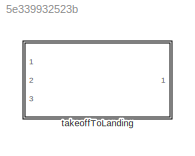
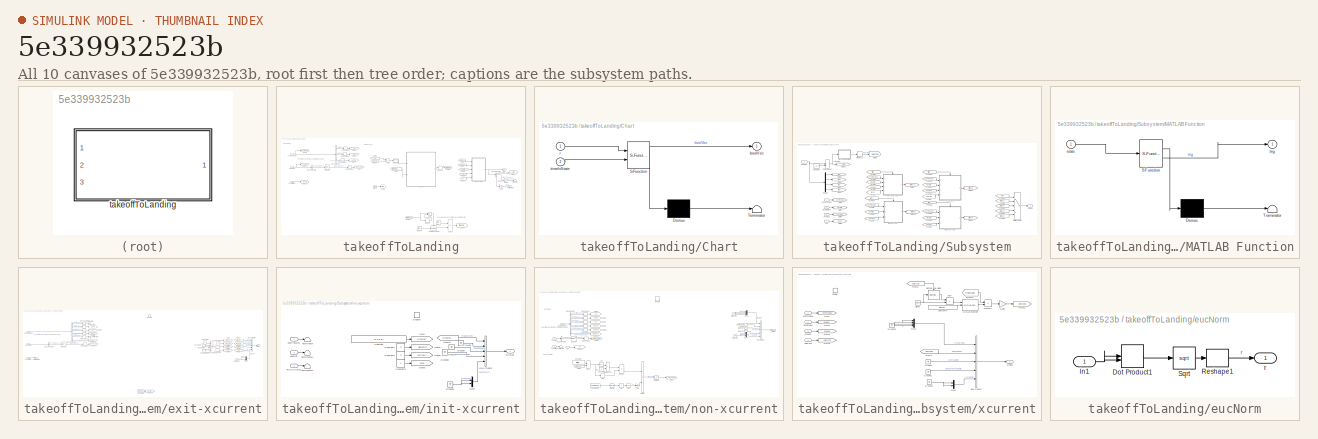
[diagram: thumbnail index - all 10 canvases of the model, root first then tree order]
MODEL slx_5e339932523b
KIND library
CONFIG AbsTol = auto
CONFIG EnableMultiTasking = off
CONFIG FixedStep = auto
CONFIG MaxStep = auto
CONFIG MinStep = auto
CONFIG RelTol = 1e-3
CONFIG SampleTimeConstraint = Unconstrained
CONFIG SolverName = VariableStepAuto
CONFIG StartTime = 0.0
CONFIG StopTime = 10.0
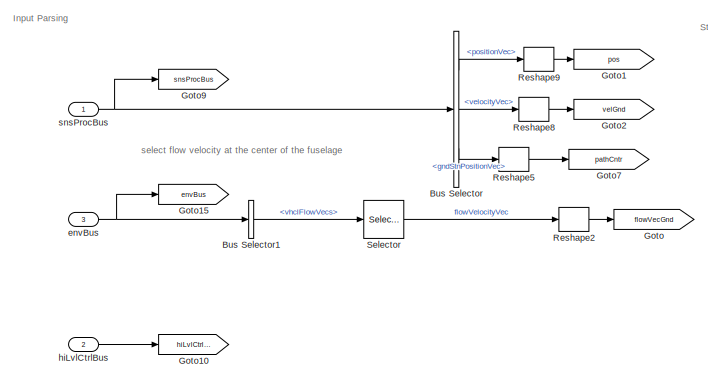
[diagram: takeoffToLanding - part 1/2, top left region]
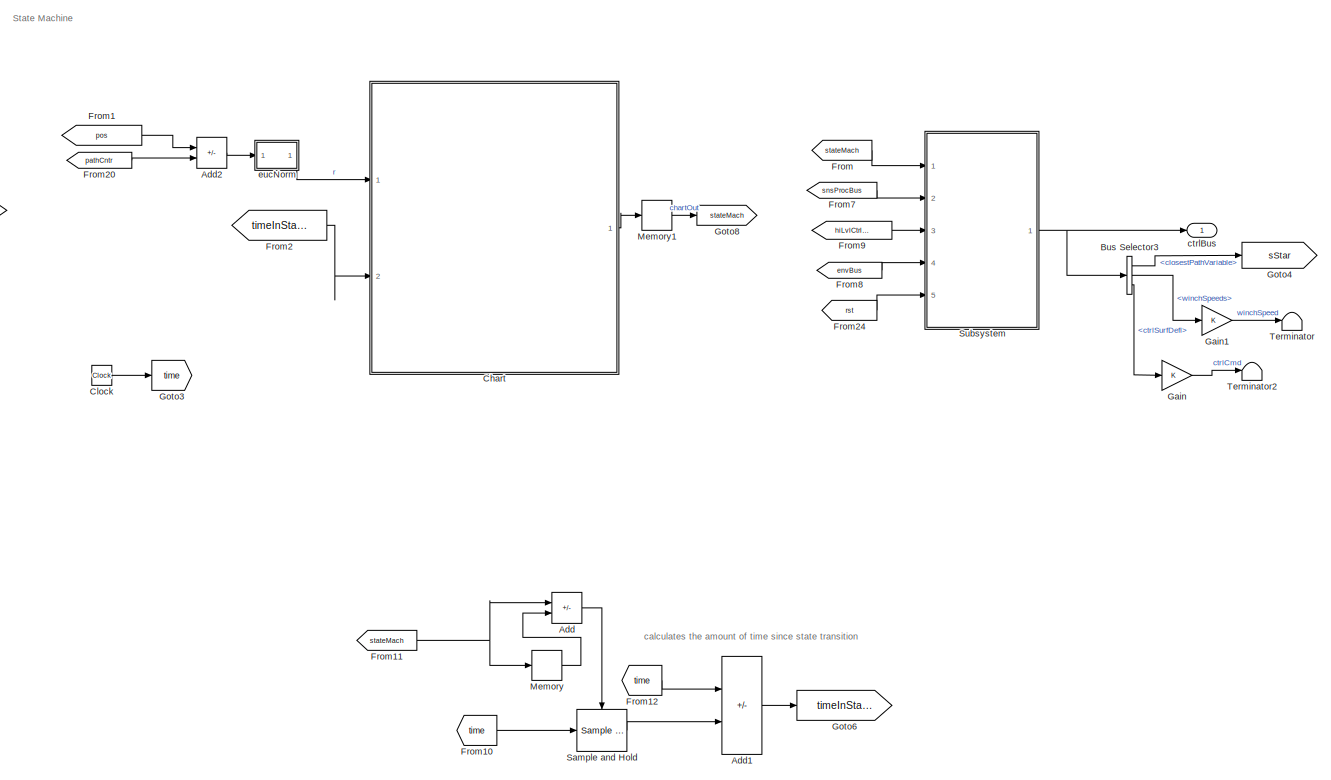
[diagram: takeoffToLanding - part 2/2, right side, full height]
BLOCK [SubSystem] takeoffToLanding
  AncestorBlock = takeoffToLanding_cl/takeoffToLanding
  InitFcn = initializeBussesFromBlock(gcb)
  LoadFcn = initializeBussesFromBlock(gcb)
  MinAlgLoopOccurrences = on
  Ports = [3, 1]
  RequestExecContextInheritance = off
  StartFcn = initializeBussesFromBlock(gcb)
  VariantControl = strcmpi(FLIGHTCONTROLLER,'takeoffToLanding')
BLOCK [Sum] takeoffToLanding/Add
  IconShape = rectangular
  Inputs = +-
  Ports = [2, 1]
BLOCK [Sum] takeoffToLanding/Add1
  IconShape = rectangular
  Inputs = +-
  Ports = [2, 1]
BLOCK [Sum] takeoffToLanding/Add2
  IconShape = rectangular
  Inputs = +-
  Ports = [2, 1]
BLOCK [BusSelector] takeoffToLanding/Bus Selector
  OutputSignals = positionVec,velocityVec,gndStnPositionVec
  Ports = [1, 3]
BLOCK [BusSelector] takeoffToLanding/Bus Selector1
  OutputSignals = vhclFlowVecs
  Ports = [1, 1]
BLOCK [BusSelector] takeoffToLanding/Bus Selector3
  OutputSignals = closestPathVariable,winchSpeeds,ctrlSurfDefl
  Ports = [1, 3]
BLOCK [SubSystem] takeoffToLanding/Chart
  ErrorFcn = Stateflow.Translate.translate
  PermitHierarchicalResolution = ExplicitOnly
  Ports = [2, 1]
  RequestExecContextInheritance = off
  SFBlockType = Chart
  TreatAsAtomicUnit = on
BLOCK [Demux] takeoffToLanding/Chart/ Demux 
  Outputs = 1
  Ports = [1, 1]
BLOCK [S-Function] takeoffToLanding/Chart/ SFunction 
  EnableBusSupport = off
  FunctionName = sf_sfun
  Parameters = maxR,minTL
  PortCounts = [2 2]
  Ports = [2, 2]
  SFcnIsStateOwnerBlock = off
  SFunctionDeploymentMode = off
  Tag = Stateflow S-Function 5
BLOCK [Terminator] takeoffToLanding/Chart/ Terminator 
BLOCK [Outport] takeoffToLanding/Chart/boolVec
  VectorParamsAs1DForOutWhenUnconnected = off
BLOCK [Inport] takeoffToLanding/Chart/r
BLOCK [Inport] takeoffToLanding/Chart/timeInState
  Port = 2
BLOCK [Clock] takeoffToLanding/Clock
BLOCK [From] takeoffToLanding/From
  GotoTag = stateMach
BLOCK [From] takeoffToLanding/From1
  GotoTag = pos
BLOCK [From] takeoffToLanding/From10
  GotoTag = time
BLOCK [From] takeoffToLanding/From11
  GotoTag = stateMach
BLOCK [From] takeoffToLanding/From12
  GotoTag = time
BLOCK [From] takeoffToLanding/From2
  GotoTag = timeInState
BLOCK [From] takeoffToLanding/From20
  GotoTag = pathCntr
BLOCK [From] takeoffToLanding/From24
  GotoTag = rst
BLOCK [From] takeoffToLanding/From7
  GotoTag = snsProcBus
BLOCK [From] takeoffToLanding/From8
  GotoTag = envBus
BLOCK [From] takeoffToLanding/From9
  GotoTag = hiLvlCtrlBus
BLOCK [Gain] takeoffToLanding/Gain
BLOCK [Gain] takeoffToLanding/Gain1
BLOCK [Goto] takeoffToLanding/Goto
  Commented = on
  GotoTag = flowVecGnd
BLOCK [Goto] takeoffToLanding/Goto1
  GotoTag = pos
BLOCK [Goto] takeoffToLanding/Goto10
  GotoTag = hiLvlCtrlBus
BLOCK [Goto] takeoffToLanding/Goto15
  GotoTag = envBus
BLOCK [Goto] takeoffToLanding/Goto2
  Commented = on
  GotoTag = velGnd
BLOCK [Goto] takeoffToLanding/Goto3
  GotoTag = time
BLOCK [Goto] takeoffToLanding/Goto4
  GotoTag = sStar
BLOCK [Goto] takeoffToLanding/Goto6
  GotoTag = timeInState
BLOCK [Goto] takeoffToLanding/Goto7
  GotoTag = pathCntr
BLOCK [Goto] takeoffToLanding/Goto8
  GotoTag = stateMach
BLOCK [Goto] takeoffToLanding/Goto9
  GotoTag = snsProcBus
BLOCK [Memory] takeoffToLanding/Memory
BLOCK [Memory] takeoffToLanding/Memory1
  InitialCondition = [1 0 0 0]
BLOCK [Reshape] takeoffToLanding/Reshape2
  OutputDimensionality = Column vector (2-D)
  Ports = [1, 1]
BLOCK [Reshape] takeoffToLanding/Reshape5
  OutputDimensionality = Column vector (2-D)
  Ports = [1, 1]
BLOCK [Reshape] takeoffToLanding/Reshape8
  OutputDimensionality = Column vector (2-D)
  Ports = [1, 1]
BLOCK [Reshape] takeoffToLanding/Reshape9
  OutputDimensionality = Column vector (2-D)
  Ports = [1, 1]
BLOCK [Reference] takeoffToLanding/Sample and Hold  REF=dspsigops/Sample
and Hold
  Ports = [1, 1, 0, 1]
  SourceBlock = dspsigops/Sample\nand Hold
  SourceProductBaseCode = DS
  SourceType = Sample and Hold
BLOCK [Selector] takeoffToLanding/Selector
  IndexOptions = Select all,Index vector (dialog)
  Indices = [1 3],5
  InputPortWidth = 3
  NumberOfDimensions = 2
  OutputSizes = 1,1
  Ports = [1, 1]
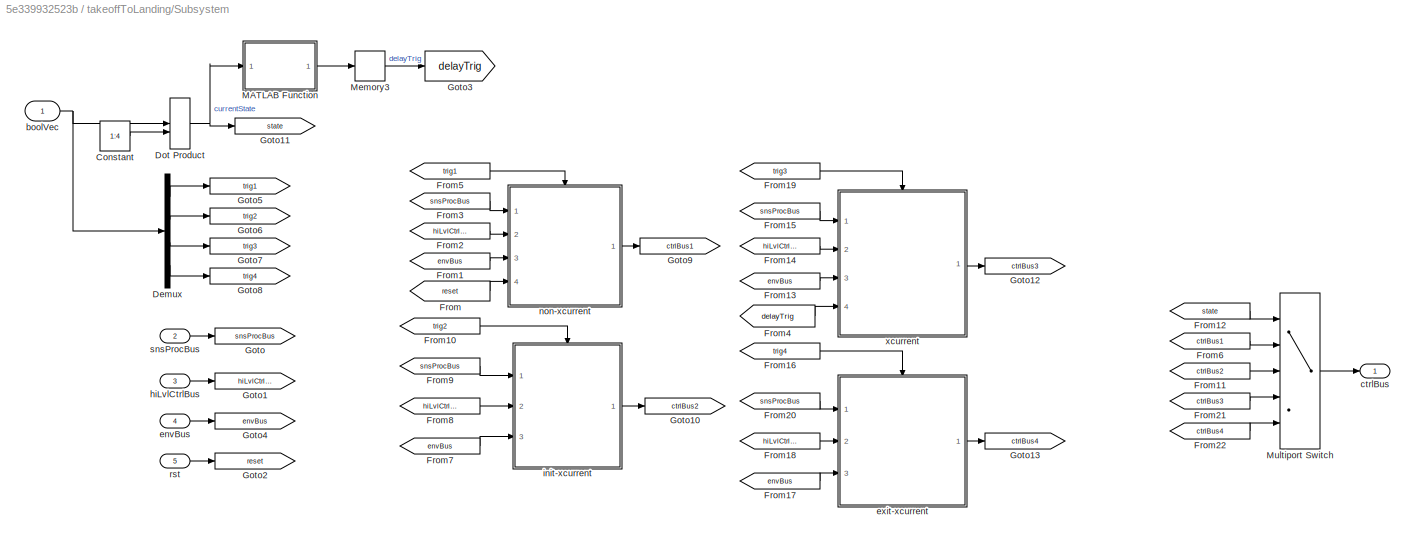
BLOCK [SubSystem] takeoffToLanding/Subsystem
  Ports = [5, 1]
  RequestExecContextInheritance = off
BLOCK [Constant] takeoffToLanding/Subsystem/Constant
  Value = 1:4
BLOCK [Demux] takeoffToLanding/Subsystem/Demux
  Ports = [1, 4]
BLOCK [DotProduct] takeoffToLanding/Subsystem/Dot Product
  OutDataTypeStr = Inherit: Inherit via internal rule
BLOCK [From] takeoffToLanding/Subsystem/From
  GotoTag = reset
BLOCK [From] takeoffToLanding/Subsystem/From1
  GotoTag = envBus
BLOCK [From] takeoffToLanding/Subsystem/From10
  GotoTag = trig2
BLOCK [From] takeoffToLanding/Subsystem/From11
  GotoTag = ctrlBus2
BLOCK [From] takeoffToLanding/Subsystem/From12
  GotoTag = state
BLOCK [From] takeoffToLanding/Subsystem/From13
  GotoTag = envBus
BLOCK [From] takeoffToLanding/Subsystem/From14
  GotoTag = hiLvlCtrlBus
BLOCK [From] takeoffToLanding/Subsystem/From15
  GotoTag = snsProcBus
BLOCK [From] takeoffToLanding/Subsystem/From16
  GotoTag = trig4
BLOCK [From] takeoffToLanding/Subsystem/From17
  GotoTag = envBus
BLOCK [From] takeoffToLanding/Subsystem/From18
  GotoTag = hiLvlCtrlBus
BLOCK [From] takeoffToLanding/Subsystem/From19
  GotoTag = trig3
BLOCK [From] takeoffToLanding/Subsystem/From2
  GotoTag = hiLvlCtrlBus
BLOCK [From] takeoffToLanding/Subsystem/From20
  GotoTag = snsProcBus
BLOCK [From] takeoffToLanding/Subsystem/From21
  GotoTag = ctrlBus3
BLOCK [From] takeoffToLanding/Subsystem/From22
  GotoTag = ctrlBus4
BLOCK [From] takeoffToLanding/Subsystem/From3
  GotoTag = snsProcBus
BLOCK [From] takeoffToLanding/Subsystem/From4
  GotoTag = delayTrig
BLOCK [From] takeoffToLanding/Subsystem/From5
  GotoTag = trig1
BLOCK [From] takeoffToLanding/Subsystem/From6
  GotoTag = ctrlBus1
BLOCK [From] takeoffToLanding/Subsystem/From7
  GotoTag = envBus
BLOCK [From] takeoffToLanding/Subsystem/From8
  GotoTag = hiLvlCtrlBus
BLOCK [From] takeoffToLanding/Subsystem/From9
  GotoTag = snsProcBus
BLOCK [Goto] takeoffToLanding/Subsystem/Goto
  GotoTag = snsProcBus
BLOCK [Goto] takeoffToLanding/Subsystem/Goto1
  GotoTag = hiLvlCtrlBus
BLOCK [Goto] takeoffToLanding/Subsystem/Goto10
  GotoTag = ctrlBus2
BLOCK [Goto] takeoffToLanding/Subsystem/Goto11
  GotoTag = state
BLOCK [Goto] takeoffToLanding/Subsystem/Goto12
  GotoTag = ctrlBus3
BLOCK [Goto] takeoffToLanding/Subsystem/Goto13
  GotoTag = ctrlBus4
BLOCK [Goto] takeoffToLanding/Subsystem/Goto2
  GotoTag = reset
BLOCK [Goto] takeoffToLanding/Subsystem/Goto3
  GotoTag = delayTrig
BLOCK [Goto] takeoffToLanding/Subsystem/Goto4
  GotoTag = envBus
BLOCK [Goto] takeoffToLanding/Subsystem/Goto5
  GotoTag = trig1
BLOCK [Goto] takeoffToLanding/Subsystem/Goto6
  GotoTag = trig2
BLOCK [Goto] takeoffToLanding/Subsystem/Goto7
  GotoTag = trig3
BLOCK [Goto] takeoffToLanding/Subsystem/Goto8
  GotoTag = trig4
BLOCK [Goto] takeoffToLanding/Subsystem/Goto9
  GotoTag = ctrlBus1
BLOCK [SubSystem] takeoffToLanding/Subsystem/MATLAB Function
  ErrorFcn = Stateflow.Translate.translate
  PermitHierarchicalResolution = ExplicitOnly
  Ports = [1, 1]
  RequestExecContextInheritance = off
  SFBlockType = MATLAB Function
  TreatAsAtomicUnit = on
BLOCK [Demux] takeoffToLanding/Subsystem/MATLAB Function/ Demux 
  Outputs = 1
  Ports = [1, 1]
BLOCK [S-Function] takeoffToLanding/Subsystem/MATLAB Function/ SFunction 
  EnableBusSupport = off
  FunctionName = sf_sfun
  PortCounts = [1 2]
  Ports = [1, 2]
  SFcnIsStateOwnerBlock = off
  SFunctionDeploymentMode = off
  Tag = Stateflow S-Function 2
BLOCK [Terminator] takeoffToLanding/Subsystem/MATLAB Function/ Terminator 
BLOCK [Inport] takeoffToLanding/Subsystem/MATLAB Function/state
BLOCK [Outport] takeoffToLanding/Subsystem/MATLAB Function/trig
BLOCK [Memory] takeoffToLanding/Subsystem/Memory3
BLOCK [MultiPortSwitch] takeoffToLanding/Subsystem/Multiport Switch
  DataPortIndices = {1,2,3,4,5,6}
  DiagnosticForDefault = Warning
  InputSameDT = off
  Inputs = 4
  Ports = [5, 1]
  SaturateOnIntegerOverflow = off
BLOCK [Inport] takeoffToLanding/Subsystem/boolVec
BLOCK [Outport] takeoffToLanding/Subsystem/ctrlBus
BLOCK [Inport] takeoffToLanding/Subsystem/envBus
  Port = 4
BLOCK [SubSystem] takeoffToLanding/Subsystem/exit-xcurrent
  Ports = [3, 1, 1]
  RequestExecContextInheritance = off
  TreatAsAtomicUnit = on
BLOCK [BusCreator] takeoffToLanding/Subsystem/exit-xcurrent/Bus Creator
  DisplayOption = bar
  InheritFromInputs = off
  Inputs = 5
  OutDataTypeStr = Bus: fltCtrlBus
  Ports = [5, 1]
BLOCK [BusSelector] takeoffToLanding/Subsystem/exit-xcurrent/Bus Selector
  OutputSignals = positionVec,velocityVec,eulerAngles,angularVel,gndStnPositionVec,avgTetherLength
  Ports = [1, 6]
BLOCK [BusSelector] takeoffToLanding/Subsystem/exit-xcurrent/Bus Selector1
  OutputSignals = vhclFlowVecs
  Ports = [1, 1]
BLOCK [Constant] takeoffToLanding/Subsystem/exit-xcurrent/Constant1
  Value = 0
BLOCK [Constant] takeoffToLanding/Subsystem/exit-xcurrent/Constant2
  Value = 0
BLOCK [Constant] takeoffToLanding/Subsystem/exit-xcurrent/Constant3
  Value = 0
BLOCK [Constant] takeoffToLanding/Subsystem/exit-xcurrent/Constant4
  Commented = on
  Value = zeros(3,1)
BLOCK [Constant] takeoffToLanding/Subsystem/exit-xcurrent/Constant5
  Value = 0
BLOCK [Constant] takeoffToLanding/Subsystem/exit-xcurrent/Constant6
  Value = 0
BLOCK [Constant] takeoffToLanding/Subsystem/exit-xcurrent/Constant7
  Value = 0
BLOCK [Constant] takeoffToLanding/Subsystem/exit-xcurrent/Constant8
  Value = 0
BLOCK [EnablePort] takeoffToLanding/Subsystem/exit-xcurrent/Enable
  Ports = []
BLOCK [From] takeoffToLanding/Subsystem/exit-xcurrent/From10
  GotoTag = sStar
BLOCK [From] takeoffToLanding/Subsystem/exit-xcurrent/From17
  GotoTag = ctrlSurDefl
BLOCK [From] takeoffToLanding/Subsystem/exit-xcurrent/From8
  GotoTag = winchCmd
BLOCK [From] takeoffToLanding/Subsystem/exit-xcurrent/From9
  GotoTag = centralAngle
BLOCK [Goto] takeoffToLanding/Subsystem/exit-xcurrent/Goto
  GotoTag = ctrlSurDefl
BLOCK [Goto] takeoffToLanding/Subsystem/exit-xcurrent/Goto1
  GotoTag = winchCmd
BLOCK [Goto] takeoffToLanding/Subsystem/exit-xcurrent/Goto11
  Commented = on
  GotoTag = tetherLength
BLOCK [Goto] takeoffToLanding/Subsystem/exit-xcurrent/Goto13
  Commented = on
  GotoTag = MDesBdy
BLOCK [Goto] takeoffToLanding/Subsystem/exit-xcurrent/Goto2
  GotoTag = centralAngle
BLOCK [Goto] takeoffToLanding/Subsystem/exit-xcurrent/Goto3
  GotoTag = sStar
BLOCK [Goto] takeoffToLanding/Subsystem/exit-xcurrent/Goto4
  Commented = on
  GotoTag = flowVecGnd
BLOCK [Goto] takeoffToLanding/Subsystem/exit-xcurrent/Goto6
  Commented = on
  GotoTag = velGnd
BLOCK [Goto] takeoffToLanding/Subsystem/exit-xcurrent/Goto7
  Commented = on
  GotoTag = eul
BLOCK [Goto] takeoffToLanding/Subsystem/exit-xcurrent/Goto8
  Commented = on
  GotoTag = angVel
BLOCK [Ground] takeoffToLanding/Subsystem/exit-xcurrent/Ground1
BLOCK [Mux] takeoffToLanding/Subsystem/exit-xcurrent/Mux2
  DisplayOption = bar
  Inputs = 2
  Ports = [2, 1]
BLOCK [Reshape] takeoffToLanding/Subsystem/exit-xcurrent/Reshape1
  OutputDimensionality = Column vector (2-D)
  Ports = [1, 1]
BLOCK [Reshape] takeoffToLanding/Subsystem/exit-xcurrent/Reshape2
  OutputDimensionality = Column vector (2-D)
  Ports = [1, 1]
BLOCK [Reshape] takeoffToLanding/Subsystem/exit-xcurrent/Reshape6
  OutputDimensionality = Column vector (2-D)
  Ports = [1, 1]
BLOCK [Reshape] takeoffToLanding/Subsystem/exit-xcurrent/Reshape7
  OutputDimensionality = Column vector (2-D)
  Ports = [1, 1]
BLOCK [Reshape] takeoffToLanding/Subsystem/exit-xcurrent/Reshape8
  OutputDimensionality = Column vector (2-D)
  Ports = [1, 1]
BLOCK [Reshape] takeoffToLanding/Subsystem/exit-xcurrent/Reshape9
  OutputDimensionality = Column vector (2-D)
  Ports = [1, 1]
BLOCK [Selector] takeoffToLanding/Subsystem/exit-xcurrent/Selector
  IndexOptions = Select all,Index vector (dialog)
  Indices = [1 3],5
  InputPortWidth = 3
  NumberOfDimensions = 2
  OutputSizes = 1,1
  Ports = [1, 1]
BLOCK [Terminator] takeoffToLanding/Subsystem/exit-xcurrent/Terminator3
BLOCK [Terminator] takeoffToLanding/Subsystem/exit-xcurrent/Terminator4
BLOCK [Terminator] takeoffToLanding/Subsystem/exit-xcurrent/Terminator5
BLOCK [Concatenate] takeoffToLanding/Subsystem/exit-xcurrent/Vector Concatenate
  NumInputs = 4
  Ports = [4, 1]
BLOCK [Outport] takeoffToLanding/Subsystem/exit-xcurrent/ctrlBus
  OutDataTypeStr = Bus: fltCtrlBus
  VectorParamsAs1DForOutWhenUnconnected = off
BLOCK [Inport] takeoffToLanding/Subsystem/exit-xcurrent/envBus
  OutDataTypeStr = Bus: envBus
  Port = 3
BLOCK [Inport] takeoffToLanding/Subsystem/exit-xcurrent/hiLvlCtrlBus
  OutDataTypeStr = Bus: hiLvlCtrlBus
  Port = 2
BLOCK [Inport] takeoffToLanding/Subsystem/exit-xcurrent/snsProcBus
  OutDataTypeStr = Bus: sensorsProcessingBus
BLOCK [Inport] takeoffToLanding/Subsystem/hiLvlCtrlBus
  Port = 3
BLOCK [SubSystem] takeoffToLanding/Subsystem/init-xcurrent
  Ports = [3, 1, 1]
  RequestExecContextInheritance = off
  TreatAsAtomicUnit = on
BLOCK [BusCreator] takeoffToLanding/Subsystem/init-xcurrent/Bus Creator
  DisplayOption = bar
  InheritFromInputs = off
  Inputs = 5
  OutDataTypeStr = Bus: fltCtrlBus
  Ports = [5, 1]
BLOCK [Constant] takeoffToLanding/Subsystem/init-xcurrent/Constant
  Value = [0 0 0 0]'
BLOCK [Constant] takeoffToLanding/Subsystem/init-xcurrent/Constant1
  Value = 0
BLOCK [Constant] takeoffToLanding/Subsystem/init-xcurrent/Constant2
  Value = 0
BLOCK [Constant] takeoffToLanding/Subsystem/init-xcurrent/Constant3
  Value = 0
BLOCK [EnablePort] takeoffToLanding/Subsystem/init-xcurrent/Enable
  Ports = []
BLOCK [From] takeoffToLanding/Subsystem/init-xcurrent/From17
  GotoTag = ctrlSurDefl
BLOCK [Goto] takeoffToLanding/Subsystem/init-xcurrent/Goto
  GotoTag = ctrlSurDefl
BLOCK [Goto] takeoffToLanding/Subsystem/init-xcurrent/Goto1
  GotoTag = winchCmd
BLOCK [Goto] takeoffToLanding/Subsystem/init-xcurrent/Goto2
  GotoTag = centralAngle
BLOCK [Goto] takeoffToLanding/Subsystem/init-xcurrent/Goto3
  GotoTag = sStar
BLOCK [Ground] takeoffToLanding/Subsystem/init-xcurrent/Ground
BLOCK [Ground] takeoffToLanding/Subsystem/init-xcurrent/Ground1
BLOCK [Ground] takeoffToLanding/Subsystem/init-xcurrent/Ground2
BLOCK [Ground] takeoffToLanding/Subsystem/init-xcurrent/Ground3
BLOCK [Mux] takeoffToLanding/Subsystem/init-xcurrent/Mux2
  DisplayOption = bar
  Inputs = 2
  Ports = [2, 1]
BLOCK [Terminator] takeoffToLanding/Subsystem/init-xcurrent/Terminator
BLOCK [Terminator] takeoffToLanding/Subsystem/init-xcurrent/Terminator1
BLOCK [Terminator] takeoffToLanding/Subsystem/init-xcurrent/Terminator2
BLOCK [Outport] takeoffToLanding/Subsystem/init-xcurrent/ctrlBus
  OutDataTypeStr = Bus: fltCtrlBus
  VectorParamsAs1DForOutWhenUnconnected = off
BLOCK [Inport] takeoffToLanding/Subsystem/init-xcurrent/envBus
  OutDataTypeStr = Bus: envBus
  Port = 3
BLOCK [Inport] takeoffToLanding/Subsystem/init-xcurrent/hiLvlCtrlBus
  OutDataTypeStr = Bus: hiLvlCtrlBus
  Port = 2
BLOCK [Inport] takeoffToLanding/Subsystem/init-xcurrent/snsProcBus
  OutDataTypeStr = Bus: sensorsProcessingBus
BLOCK [SubSystem] takeoffToLanding/Subsystem/non-xcurrent
  Ports = [4, 1, 1]
  RequestExecContextInheritance = off
  TreatAsAtomicUnit = on
BLOCK [Abs] takeoffToLanding/Subsystem/non-xcurrent/Abs
  SaturateOnIntegerOverflow = off
BLOCK [Sum] takeoffToLanding/Subsystem/non-xcurrent/Add
  IconShape = rectangular
  Inputs = +
  Ports = [1, 1]
BLOCK [BusCreator] takeoffToLanding/Subsystem/non-xcurrent/Bus Creator
  DisplayOption = bar
  InheritFromInputs = off
  Inputs = 5
  OutDataTypeStr = Bus: fltCtrlBus
  Ports = [5, 1]
BLOCK [BusSelector] takeoffToLanding/Subsystem/non-xcurrent/Bus Selector
  OutputSignals = positionVec,velocityVec,eulerAngles,angularVel,gndStnPositionVec,avgTetherLength
  Ports = [1, 6]
BLOCK [BusSelector] takeoffToLanding/Subsystem/non-xcurrent/Bus Selector1
  OutputSignals = vhclFlowVecs
  Ports = [1, 1]
BLOCK [Constant] takeoffToLanding/Subsystem/non-xcurrent/Constant
  Value = fltCtrl.initTL.Value
BLOCK [Constant] takeoffToLanding/Subsystem/non-xcurrent/Constant1
  Value = .5
BLOCK [Constant] takeoffToLanding/Subsystem/non-xcurrent/Constant2
  Value = boatSpeed
BLOCK [Product] takeoffToLanding/Subsystem/non-xcurrent/Divide
  Inputs = **
  Ports = [2, 1]
BLOCK [Product] takeoffToLanding/Subsystem/non-xcurrent/Divide1
  Inputs = **
  Ports = [2, 1]
BLOCK [EnablePort] takeoffToLanding/Subsystem/non-xcurrent/Enable
  Ports = []
BLOCK [From] takeoffToLanding/Subsystem/non-xcurrent/From6
  GotoTag = tetherLength
BLOCK [From] takeoffToLanding/Subsystem/non-xcurrent/From8
  GotoTag = winchCmd
BLOCK [Gain] takeoffToLanding/Subsystem/non-xcurrent/Gain
  Gain = fltCtrl.sIM.Value
BLOCK [Goto] takeoffToLanding/Subsystem/non-xcurrent/Goto1
  GotoTag = winchCmd
BLOCK [Goto] takeoffToLanding/Subsystem/non-xcurrent/Goto11
  GotoTag = tetherLength
BLOCK [Goto] takeoffToLanding/Subsystem/non-xcurrent/Goto12
  GotoTag = rst
BLOCK [Goto] takeoffToLanding/Subsystem/non-xcurrent/Goto16
  Commented = on
  GotoTag = pathCntr
BLOCK [Goto] takeoffToLanding/Subsystem/non-xcurrent/Goto4
  Commented = on
  GotoTag = flowVecGnd
BLOCK [Goto] takeoffToLanding/Subsystem/non-xcurrent/Goto5
  Commented = on
  GotoTag = pos
BLOCK [Goto] takeoffToLanding/Subsystem/non-xcurrent/Goto6
  Commented = on
  GotoTag = velGnd
BLOCK [Goto] takeoffToLanding/Subsystem/non-xcurrent/Goto7
  Commented = on
  GotoTag = eul
BLOCK [Goto] takeoffToLanding/Subsystem/non-xcurrent/Goto8
  Commented = on
  GotoTag = angVel
BLOCK [RelationalOperator] takeoffToLanding/Subsystem/non-xcurrent/GreaterThan
  InputSameDT = off
  Operator = >
  OutDataTypeStr = boolean
  Ports = [2, 1]
  RndMeth = Simplest
BLOCK [Ground] takeoffToLanding/Subsystem/non-xcurrent/Ground1
BLOCK [Ground] takeoffToLanding/Subsystem/non-xcurrent/Ground3
BLOCK [Ground] takeoffToLanding/Subsystem/non-xcurrent/Ground4
BLOCK [Ground] takeoffToLanding/Subsystem/non-xcurrent/Ground5
BLOCK [Sum] takeoffToLanding/Subsystem/non-xcurrent/Minus
  IconShape = rectangular
  Inputs = +-
  Ports = [2, 1]
BLOCK [Mux] takeoffToLanding/Subsystem/non-xcurrent/Mux1
  DisplayOption = bar
  Ports = [4, 1]
BLOCK [Mux] takeoffToLanding/Subsystem/non-xcurrent/Mux2
  DisplayOption = bar
  Inputs = 2
  Ports = [2, 1]
BLOCK [Reshape] takeoffToLanding/Subsystem/non-xcurrent/Reshape1
  OutputDimensionality = Column vector (2-D)
  Ports = [1, 1]
BLOCK [Reshape] takeoffToLanding/Subsystem/non-xcurrent/Reshape2
  OutputDimensionality = Column vector (2-D)
  Ports = [1, 1]
BLOCK [Reshape] takeoffToLanding/Subsystem/non-xcurrent/Reshape6
  OutputDimensionality = Column vector (2-D)
  Ports = [1, 1]
BLOCK [Reshape] takeoffToLanding/Subsystem/non-xcurrent/Reshape7
  OutputDimensionality = Column vector (2-D)
  Ports = [1, 1]
BLOCK [Reshape] takeoffToLanding/Subsystem/non-xcurrent/Reshape8
  OutputDimensionality = Column vector (2-D)
  Ports = [1, 1]
BLOCK [Reshape] takeoffToLanding/Subsystem/non-xcurrent/Reshape9
  OutputDimensionality = Column vector (2-D)
  Ports = [1, 1]
BLOCK [Saturate] takeoffToLanding/Subsystem/non-xcurrent/Saturation
  LowerLimit = -inf
  UpperLimit = 0
BLOCK [Selector] takeoffToLanding/Subsystem/non-xcurrent/Selector
  IndexOptions = Select all,Index vector (dialog)
  Indices = [1 3],5
  InputPortWidth = 3
  NumberOfDimensions = 2
  OutputSizes = 1,1
  Ports = [1, 1]
BLOCK [Signum] takeoffToLanding/Subsystem/non-xcurrent/Sign
BLOCK [Sqrt] takeoffToLanding/Subsystem/non-xcurrent/Sqrt
BLOCK [Math] takeoffToLanding/Subsystem/non-xcurrent/Square
  Operator = square
  Ports = [1, 1]
  SignedPower = on
BLOCK [Terminator] takeoffToLanding/Subsystem/non-xcurrent/Terminator1
BLOCK [Outport] takeoffToLanding/Subsystem/non-xcurrent/ctrlBus
  OutDataTypeStr = Bus: fltCtrlBus
  VectorParamsAs1DForOutWhenUnconnected = off
BLOCK [Inport] takeoffToLanding/Subsystem/non-xcurrent/envBus
  OutDataTypeStr = Bus: envBus
  Port = 3
BLOCK [Inport] takeoffToLanding/Subsystem/non-xcurrent/hiLvlCtrlBus
  OutDataTypeStr = Bus: hiLvlCtrlBus
  Port = 2
BLOCK [Inport] takeoffToLanding/Subsystem/non-xcurrent/rst 
  Port = 4
BLOCK [Inport] takeoffToLanding/Subsystem/non-xcurrent/snsProcBus
  OutDataTypeStr = Bus: sensorsProcessingBus
BLOCK [Inport] takeoffToLanding/Subsystem/rst 
  Port = 5
BLOCK [Inport] takeoffToLanding/Subsystem/snsProcBus
  Port = 2
BLOCK [SubSystem] takeoffToLanding/Subsystem/xcurrent
  Ports = [4, 1, 1]
  RequestExecContextInheritance = off
  TreatAsAtomicUnit = on
BLOCK [Sum] takeoffToLanding/Subsystem/xcurrent/Add4
  IconShape = rectangular
  Inputs = -+
  Ports = [2, 1]
BLOCK [BusCreator] takeoffToLanding/Subsystem/xcurrent/Bus Creator
  DisplayOption = bar
  InheritFromInputs = off
  Inputs = 5
  OutDataTypeStr = Bus: fltCtrlBus
  Ports = [5, 1]
BLOCK [Clock] takeoffToLanding/Subsystem/xcurrent/Clock2
BLOCK [Constant] takeoffToLanding/Subsystem/xcurrent/Constant4
  Value = fltCtrl.vSat.Value
BLOCK [EnablePort] takeoffToLanding/Subsystem/xcurrent/Enable
  Ports = []
BLOCK [From] takeoffToLanding/Subsystem/xcurrent/From31
  GotoTag = flowMag
BLOCK [From] takeoffToLanding/Subsystem/xcurrent/From5
  GotoTag = delayTrig
BLOCK [From] takeoffToLanding/Subsystem/xcurrent/From6
  GotoTag = winchCmd
BLOCK [Gain] takeoffToLanding/Subsystem/xcurrent/Gain4
BLOCK [Goto] takeoffToLanding/Subsystem/xcurrent/Goto
  GotoTag = snsProcBus
BLOCK [Goto] takeoffToLanding/Subsystem/xcurrent/Goto1
  GotoTag = hiLvlCtrlBus
BLOCK [Goto] takeoffToLanding/Subsystem/xcurrent/Goto12
  GotoTag = winchCmd
BLOCK [Goto] takeoffToLanding/Subsystem/xcurrent/Goto2
  GotoTag = envBus
BLOCK [Goto] takeoffToLanding/Subsystem/xcurrent/Goto3
  GotoTag = delayTrig
BLOCK [Ground] takeoffToLanding/Subsystem/xcurrent/Ground
BLOCK [Ground] takeoffToLanding/Subsystem/xcurrent/Ground1
BLOCK [Ground] takeoffToLanding/Subsystem/xcurrent/Ground2
BLOCK [Ground] takeoffToLanding/Subsystem/xcurrent/Ground3
BLOCK [Reference] takeoffToLanding/Subsystem/xcurrent/MATLAB Function  REF=periodicCtrlExpStateMachine/periodicCtrlExpStateMachine/MATLAB Function
  Ports = [3, 1]
  SourceBlock = periodicCtrlExpStateMachine/periodicCtrlExpStateMachine/MATLAB Function
  SourceType = SubSystem
BLOCK [Mux] takeoffToLanding/Subsystem/xcurrent/Mux1
  DisplayOption = bar
  Inputs = 2
  Ports = [2, 1]
BLOCK [Mux] takeoffToLanding/Subsystem/xcurrent/Mux2
  DisplayOption = bar
  Ports = [4, 1]
BLOCK [Product] takeoffToLanding/Subsystem/xcurrent/Product1
  Ports = [2, 1]
BLOCK [Reference] takeoffToLanding/Subsystem/xcurrent/Sample and Hold2  REF=dspsigops/Sample
and Hold
  Ports = [1, 1, 0, 1]
  SourceBlock = dspsigops/Sample\nand Hold
  SourceProductBaseCode = DS
  SourceType = Sample and Hold
BLOCK [Outport] takeoffToLanding/Subsystem/xcurrent/ctrlBus
  OutDataTypeStr = Bus: fltCtrlBus
  VectorParamsAs1DForOutWhenUnconnected = off
BLOCK [Inport] takeoffToLanding/Subsystem/xcurrent/delayTrig
  Port = 4
BLOCK [Inport] takeoffToLanding/Subsystem/xcurrent/envBus
  OutDataTypeStr = Bus: envBus
  Port = 3
BLOCK [Inport] takeoffToLanding/Subsystem/xcurrent/hiLvlCtrlBus
  OutDataTypeStr = Bus: hiLvlCtrlBus
  Port = 2
BLOCK [Inport] takeoffToLanding/Subsystem/xcurrent/snsProcBus
  OutDataTypeStr = Bus: sensorsProcessingBus
BLOCK [Terminator] takeoffToLanding/Terminator
BLOCK [Terminator] takeoffToLanding/Terminator2
BLOCK [Outport] takeoffToLanding/ctrlBus
  OutDataTypeStr = Bus: fltCtrlBus
  VectorParamsAs1DForOutWhenUnconnected = off
BLOCK [Inport] takeoffToLanding/envBus
  OutDataTypeStr = Bus: envBus
  Port = 3
BLOCK [SubSystem] takeoffToLanding/eucNorm
  Ports = [1, 1]
  RequestExecContextInheritance = off
BLOCK [DotProduct] takeoffToLanding/eucNorm/Dot Product1
  OutDataTypeStr = Inherit: Inherit via internal rule
BLOCK [Inport] takeoffToLanding/eucNorm/In1
BLOCK [Reshape] takeoffToLanding/eucNorm/Reshape1
  Ports = [1, 1]
BLOCK [Sqrt] takeoffToLanding/eucNorm/Sqrt
BLOCK [Outport] takeoffToLanding/eucNorm/r
BLOCK [Inport] takeoffToLanding/hiLvlCtrlBus
  OutDataTypeStr = Bus: hiLvlCtrlBus
  Port = 2
BLOCK [Inport] takeoffToLanding/snsProcBus
  OutDataTypeStr = Bus: sensorsProcessingBus
ANNOTATION takeoffToLanding: Input Parsing
ANNOTATION takeoffToLanding: State Machine
ANNOTATION takeoffToLanding: calculates the amount of time since state transition
ANNOTATION takeoffToLanding: select flow velocity at the center of the fuselage
ANNOTATION takeoffToLanding/Subsystem/exit-xcurrent: select flow velocity at the center of the fuselage
ANNOTATION takeoffToLanding/Subsystem/non-xcurrent: Input Parsin'
ANNOTATION takeoffToLanding/Subsystem/non-xcurrent: Winch Controller
ANNOTATION takeoffToLanding/Subsystem/non-xcurrent: select flow velocity at the center of the fuselage
CHART takeoffToLanding/Subsystem/MATLAB Function states=1 transitions=1
  STATE_LABEL 'eML_blk_kernel()'
  STATE_LABEL 'SCRIPT:\nfunction trig = fcn(state)\ntrig = 0; \nif state ==3\ntrig = 1; \nend\n\n'
CHART takeoffToLanding/Chart states=4 transitions=5
  STATE_LABEL 'init\nboolVec=[0 1 0 0];'
  STATE_LABEL 'non_x\nboolVec=[1 0 0 0];'
  STATE_LABEL 'exit\nboolVec=[0 0 0 1];'
  STATE_LABEL 'cross\nboolVec=[0 0 1 0];'
CHART  states=0 transitions=0
CHART  states=0 transitions=0
